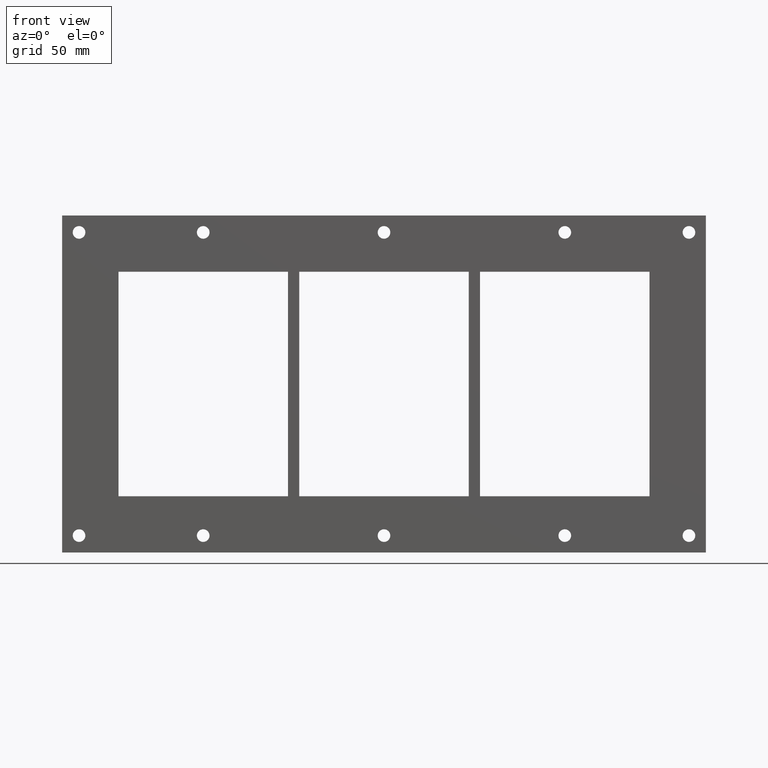
[diagram: clean part render]
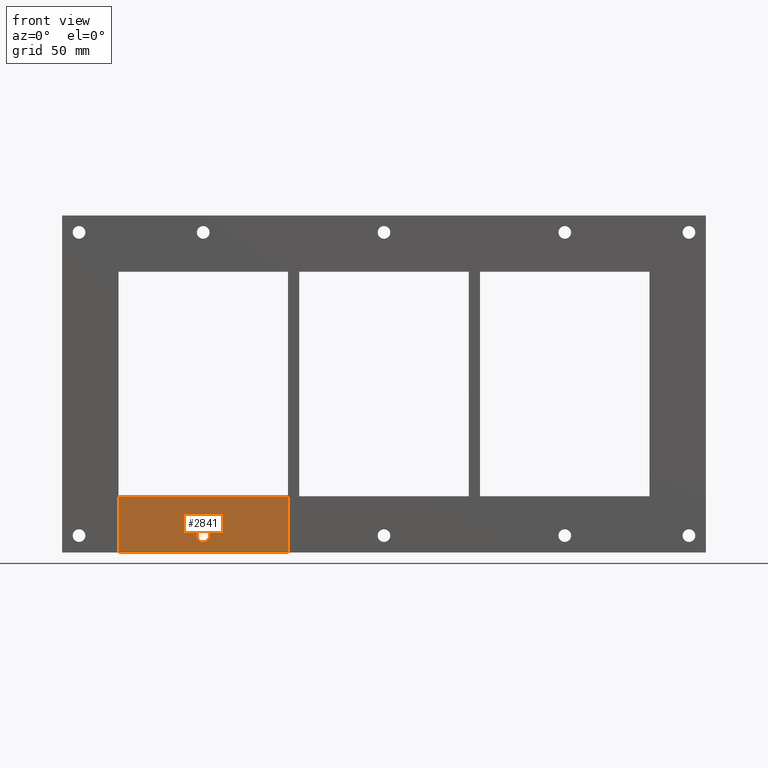
[diagram: same view with one face highlighted and labeled with its STEP entity id]
A machine part, front view. The second image highlights one B-rep face of the part: STEP entity #2841.
In plain terms, the highlighted planar face has unit normal (-0, -1, -0).
Its self-contained STEP definition (entity closure, byte-faithful):
#2195=CARTESIAN_POINT('',(32.5,0.0,60.25));
#2196=VERTEX_POINT('',#2195);
#2197=CARTESIAN_POINT('',(28.0,0.0,60.25));
#2198=DIRECTION('',(0.0,1.0,0.0));
#2199=DIRECTION('',(1.0,0.0,0.0));
#2200=AXIS2_PLACEMENT_3D('',#2197,#2198,#2199);
#2201=CIRCLE('',#2200,4.5);
#2202=EDGE_CURVE('',#2196,#2196,#2201,.T.);
#2673=CARTESIAN_POINT('',(40.0,0.0,0.0));
#2674=VERTEX_POINT('',#2673);
#2681=CARTESIAN_POINT('',(0.0,0.0,0.0));
#2682=VERTEX_POINT('',#2681);
#2683=CARTESIAN_POINT('',(0.0,0.0,0.0));
#2684=DIRECTION('',(1.0,0.0,0.0));
#2685=VECTOR('',#2684,40.0);
#2686=LINE('',#2683,#2685);
#2687=EDGE_CURVE('',#2682,#2674,#2686,.T.);
#2769=CARTESIAN_POINT('',(0.0,0.0,120.5));
#2770=VERTEX_POINT('',#2769);
#2777=CARTESIAN_POINT('',(40.0,0.0,120.5));
#2778=VERTEX_POINT('',#2777);
#2779=CARTESIAN_POINT('',(40.0,0.0,120.5));
#2780=DIRECTION('',(-1.0,0.0,0.0));
#2781=VECTOR('',#2780,40.0);
#2782=LINE('',#2779,#2781);
#2783=EDGE_CURVE('',#2778,#2770,#2782,.T.);
#2817=CARTESIAN_POINT('',(40.0,0.0,0.0));
#2818=DIRECTION('',(0.0,-1.0,0.0));
#2819=DIRECTION('',(0.0,0.0,-1.0));
#2820=AXIS2_PLACEMENT_3D('',#2817,#2818,#2819);
#2821=PLANE('',#2820);
#2822=ORIENTED_EDGE('',*,*,#2783,.T.);
#2823=CARTESIAN_POINT('',(0.0,0.0,0.0));
#2824=DIRECTION('',(0.0,0.0,1.0));
#2825=VECTOR('',#2824,120.5);
#2826=LINE('',#2823,#2825);
#2827=EDGE_CURVE('',#2682,#2770,#2826,.T.);
#2828=ORIENTED_EDGE('',*,*,#2827,.F.);
#2829=ORIENTED_EDGE('',*,*,#2687,.T.);
#2830=CARTESIAN_POINT('',(40.0,0.0,0.0));
#2831=DIRECTION('',(0.0,0.0,1.0));
#2832=VECTOR('',#2831,120.5);
#2833=LINE('',#2830,#2832);
#2834=EDGE_CURVE('',#2674,#2778,#2833,.T.);
#2835=ORIENTED_EDGE('',*,*,#2834,.T.);
#2836=EDGE_LOOP('',(#2822,#2828,#2829,#2835));
#2837=FACE_OUTER_BOUND('',#2836,.T.);
#2838=ORIENTED_EDGE('',*,*,#2202,.T.);
#2839=EDGE_LOOP('',(#2838));
#2840=FACE_BOUND('',#2839,.T.);
#2841=ADVANCED_FACE('',(#2837,#2840),#2821,.T.);